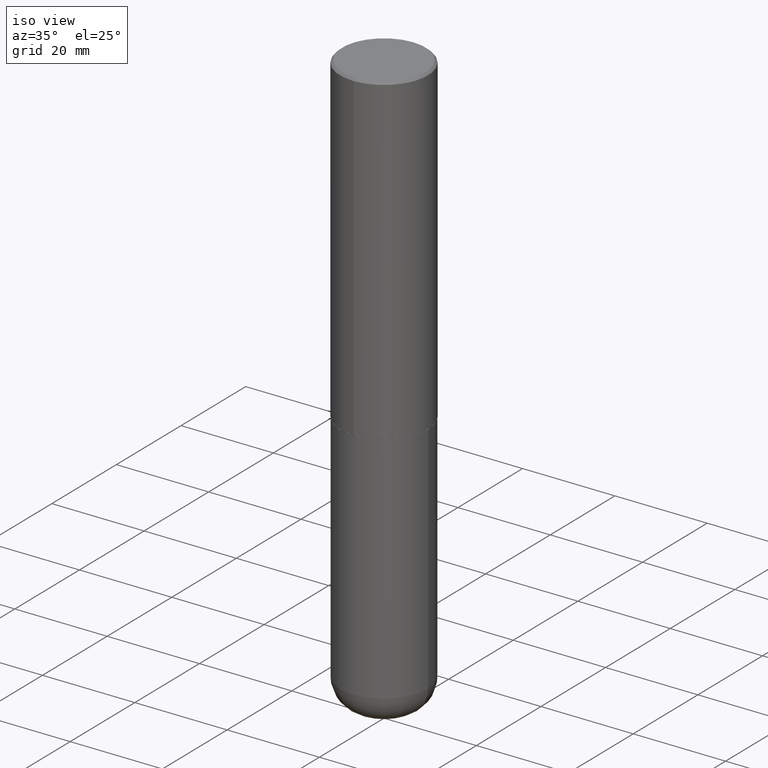
[diagram: clean part render]
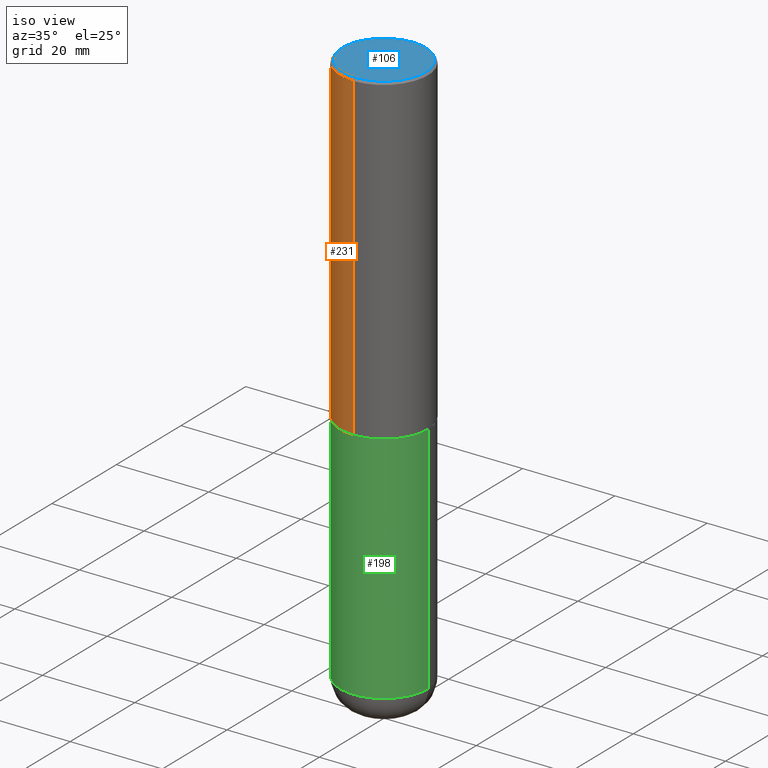
[diagram: same view with three faces highlighted in distinct colors, each labeled with its STEP entity id]
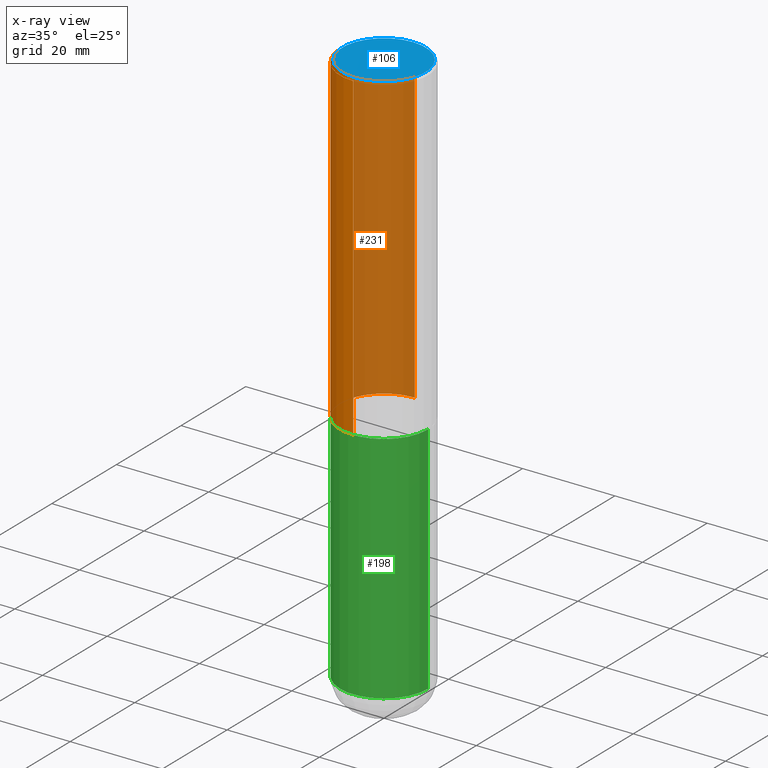
[diagram: x-ray of the same camera — body ghosted, the three highlighted faces saturated]
A machine part, iso view with three faces highlighted in distinct colors.
The next image is the same camera in x-ray (body ghosted, the three faces saturated) — at least one of them is partly hidden behind the body in this view.
Their STEP definitions:

[orange] entity #231 — the highlighted cylindrical surface (partial cylindrical patch) has radius 9.525 mm, axis along (-0, 0, 1).
#5 = VERTEX_POINT ( 'NONE', #168 ) ;
#13 = ORIENTED_EDGE ( 'NONE', *, *, #176, .T. ) ;
#19 = EDGE_CURVE ( 'NONE', #5, #32, #126, .T. ) ;
#25 = CARTESIAN_POINT ( 'NONE',  ( 4.892080783483214581E-31, -6.981325591587361238E-17, -0.02000000000000008715 ) ) ;
#32 = VERTEX_POINT ( 'NONE', #273 ) ;
#33 = VECTOR ( 'NONE', #261, 39.37007874015748143 ) ;
#66 = DIRECTION ( 'NONE',  ( -6.982962677686265922E-15, -1.000000000000000000, 2.913971193241877611E-15 ) ) ;
#77 = DIRECTION ( 'NONE',  ( -2.446040391741596606E-29, 3.490662795793665557E-15, 1.000000000000000000 ) ) ;
#88 = EDGE_CURVE ( 'NONE', #402, #341, #171, .T. ) ;
#99 = LINE ( 'NONE', #134, #138 ) ;
#104 = CARTESIAN_POINT ( 'NONE',  ( -2.572686749164323547E-15, -0.3750000000000001110, -0.01999999999999877570 ) ) ;
#107 = CARTESIAN_POINT ( 'NONE',  ( 0.000000000000000000, 0.000000000000000000, 0.000000000000000000 ) ) ;
#114 = AXIS2_PLACEMENT_3D ( 'NONE', #236, #362, #66 ) ;
#120 = LINE ( 'NONE', #123, #33 ) ;
#123 = CARTESIAN_POINT ( 'NONE',  ( -2.618611004132351594E-15, -0.3750000000000002220, 1.308998548422625521E-15 ) ) ;
#126 = CIRCLE ( 'NONE', #114, 0.3750000000000003886 ) ;
#134 = CARTESIAN_POINT ( 'NONE',  ( 2.664535259100376880E-15, 0.3750000000000002220, -1.308998548422625521E-15 ) ) ;
#138 = VECTOR ( 'NONE', #239, 39.37007874015748143 ) ;
#168 = CARTESIAN_POINT ( 'NONE',  ( 2.664535259100411196E-15, 0.3749999999999907296, -2.749000000000000998 ) ) ;
#169 = CYLINDRICAL_SURFACE ( 'NONE', #391, 0.3750000000000002220 ) ;
#171 = CIRCLE ( 'NONE', #189, 0.3750000000000000555 ) ;
#176 = EDGE_CURVE ( 'NONE', #32, #341, #120, .T. ) ;
#186 = ORIENTED_EDGE ( 'NONE', *, *, #19, .T. ) ;
#189 = AXIS2_PLACEMENT_3D ( 'NONE', #25, #326, #353 ) ;
#231 = ADVANCED_FACE ( 'NONE', ( #364 ), #169, .T. ) ;
#236 = CARTESIAN_POINT ( 'NONE',  ( 6.724165036897648492E-29, -9.595832025636787455E-15, -2.749000000000000110 ) ) ;
#239 = DIRECTION ( 'NONE',  ( -2.446040391741596606E-29, 3.490662795793665557E-15, 1.000000000000000000 ) ) ;
#244 = DIRECTION ( 'NONE',  ( -6.982962677686266711E-15, -1.000000000000000000, 3.490662795793665951E-15 ) ) ;
#255 = EDGE_CURVE ( 'NONE', #5, #402, #99, .T. ) ;
#261 = DIRECTION ( 'NONE',  ( -2.446040391741596606E-29, 3.490662795793665557E-15, 1.000000000000000000 ) ) ;
#273 = CARTESIAN_POINT ( 'NONE',  ( -2.618611004132284935E-15, -0.3750000000000099920, -2.748999999999999222 ) ) ;
#285 = CARTESIAN_POINT ( 'NONE',  ( 2.618611004132350411E-15, 0.3749999999999999445, -0.02000000000000139513 ) ) ;
#290 = EDGE_LOOP ( 'NONE', ( #371, #186, #13, #385 ) ) ;
#326 = DIRECTION ( 'NONE',  ( -2.446040391741596606E-29, 3.490662795793665557E-15, 1.000000000000000000 ) ) ;
#341 = VERTEX_POINT ( 'NONE', #104 ) ;
#353 = DIRECTION ( 'NONE',  ( -6.982962677686265922E-15, -1.000000000000000000, 3.494488891895536035E-15 ) ) ;
#362 = DIRECTION ( 'NONE',  ( -2.446040391741596606E-29, 3.490662795793665557E-15, 1.000000000000000000 ) ) ;
#364 = FACE_OUTER_BOUND ( 'NONE', #290, .T. ) ;
#371 = ORIENTED_EDGE ( 'NONE', *, *, #255, .F. ) ;
#385 = ORIENTED_EDGE ( 'NONE', *, *, #88, .F. ) ;
#391 = AXIS2_PLACEMENT_3D ( 'NONE', #107, #77, #244 ) ;
#402 = VERTEX_POINT ( 'NONE', #285 ) ;

[blue] entity #106 — the highlighted planar face has unit normal (0, -0, -1).
#4 = CARTESIAN_POINT ( 'NONE',  ( 2.478951750578624209E-15, 0.3549999999999999822, -1.215853765202481601E-15 ) ) ;
#28 = CARTESIAN_POINT ( 'NONE',  ( 2.548781377355487113E-15, 0.3549999999999999822, -1.192522237898212341E-15 ) ) ;
#31 = DIRECTION ( 'NONE',  ( 6.982962677686265922E-15, 1.000000000000000000, -3.490662795793665557E-15 ) ) ;
#45 = CARTESIAN_POINT ( 'NONE',  ( -1.141397163745304909E-45, 1.628849886601155835E-31, 4.666305460853910467E-17 ) ) ;
#52 = DIRECTION ( 'NONE',  ( -2.446040391741596606E-29, 3.490662795793665557E-15, 1.000000000000000000 ) ) ;
#55 = CARTESIAN_POINT ( 'NONE',  ( -1.141397163745304909E-45, 1.628849886601155835E-31, 4.666305460853910467E-17 ) ) ;
#67 = DIRECTION ( 'NONE',  ( -2.446040391741596606E-29, 3.490662795793665557E-15, 1.000000000000000000 ) ) ;
#90 = FACE_OUTER_BOUND ( 'NONE', #210, .T. ) ;
#106 = ADVANCED_FACE ( 'NONE', ( #90 ), #161, .F. ) ;
#127 = CIRCLE ( 'NONE', #363, 0.3549999999999999822 ) ;
#156 = VERTEX_POINT ( 'NONE', #28 ) ;
#161 = PLANE ( 'NONE',  #196 ) ;
#175 = DIRECTION ( 'NONE',  ( -6.982962677686265922E-15, -1.000000000000000000, 3.490662795793665557E-15 ) ) ;
#185 = CARTESIAN_POINT ( 'NONE',  ( -2.504081769186608216E-15, -0.3549999999999999822, 1.285848347115290366E-15 ) ) ;
#196 = AXIS2_PLACEMENT_3D ( 'NONE', #4, #330, #31 ) ;
#210 = EDGE_LOOP ( 'NONE', ( #333, #288 ) ) ;
#222 = CIRCLE ( 'NONE', #339, 0.3549999999999999822 ) ;
#284 = EDGE_CURVE ( 'NONE', #387, #156, #222, .T. ) ;
#288 = ORIENTED_EDGE ( 'NONE', *, *, #284, .T. ) ;
#330 = DIRECTION ( 'NONE',  ( 2.446040391741596045E-29, -3.490662795793665557E-15, -1.000000000000000000 ) ) ;
#333 = ORIENTED_EDGE ( 'NONE', *, *, #381, .T. ) ;
#339 = AXIS2_PLACEMENT_3D ( 'NONE', #45, #67, #175 ) ;
#363 = AXIS2_PLACEMENT_3D ( 'NONE', #55, #52, #383 ) ;
#381 = EDGE_CURVE ( 'NONE', #156, #387, #127, .T. ) ;
#383 = DIRECTION ( 'NONE',  ( -6.982962677686265922E-15, -1.000000000000000000, 3.490662795793665557E-15 ) ) ;
#387 = VERTEX_POINT ( 'NONE', #185 ) ;

[green] entity #198 — the highlighted cylindrical surface (partial cylindrical patch) has radius 9.525 mm, axis along (-0, 0, 1).
#27 = VERTEX_POINT ( 'NONE', #135 ) ;
#37 = CARTESIAN_POINT ( 'NONE',  ( -0.3750000000000000555, -1.042851976156142014E-14, -2.750000000000000000 ) ) ;
#59 = CARTESIAN_POINT ( 'NONE',  ( 0.3749999999999999445, -2.618611004132349622E-15, 1.828566290923475642E-29 ) ) ;
#65 = CARTESIAN_POINT ( 'NONE',  ( 0.3750000000000000555, -1.222018468595100145E-14, -2.750000000000000000 ) ) ;
#75 = EDGE_LOOP ( 'NONE', ( #306, #130, #224, #262 ) ) ;
#78 = DIRECTION ( 'NONE',  ( -2.445468806185136877E-29, 3.491481338843145188E-15, 1.000000000000000000 ) ) ;
#84 = VECTOR ( 'NONE', #78, 39.37007874015748143 ) ;
#103 = EDGE_CURVE ( 'NONE', #245, #170, #382, .T. ) ;
#109 = DIRECTION ( 'NONE',  ( 1.000000000000000000, -6.982962677686269077E-15, 0.000000000000000000 ) ) ;
#130 = ORIENTED_EDGE ( 'NONE', *, *, #350, .T. ) ;
#135 = CARTESIAN_POINT ( 'NONE',  ( 0.3750000000000002220, -1.920314736363729341E-14, -4.750000000000000000 ) ) ;
#136 = EDGE_CURVE ( 'NONE', #27, #170, #355, .T. ) ;
#137 = CYLINDRICAL_SURFACE ( 'NONE', #346, 0.3749999999999999445 ) ;
#141 = CARTESIAN_POINT ( 'NONE',  ( -0.3749999999999999445, 2.664535259100375303E-15, -1.844600658845589318E-29 ) ) ;
#170 = VERTEX_POINT ( 'NONE', #65 ) ;
#177 = LINE ( 'NONE', #141, #84 ) ;
#179 = VECTOR ( 'NONE', #190, 39.37007874015748143 ) ;
#190 = DIRECTION ( 'NONE',  ( -2.445468806185136877E-29, 3.491481338843145188E-15, 1.000000000000000000 ) ) ;
#192 = CARTESIAN_POINT ( 'NONE',  ( 6.725039217009124520E-29, -9.601573681818649859E-15, -2.750000000000000000 ) ) ;
#198 = ADVANCED_FACE ( 'NONE', ( #332 ), #137, .T. ) ;
#219 = EDGE_CURVE ( 'NONE', #418, #245, #177, .T. ) ;
#224 = ORIENTED_EDGE ( 'NONE', *, *, #136, .T. ) ;
#238 = AXIS2_PLACEMENT_3D ( 'NONE', #275, #368, #109 ) ;
#242 = DIRECTION ( 'NONE',  ( 1.000000000000000000, -6.982962677686266711E-15, 4.876176775795935793E-29 ) ) ;
#245 = VERTEX_POINT ( 'NONE', #37 ) ;
#254 = CARTESIAN_POINT ( 'NONE',  ( -0.3750000000000002220, -1.392000110040456296E-14, -4.750000000000000000 ) ) ;
#262 = ORIENTED_EDGE ( 'NONE', *, *, #103, .F. ) ;
#275 = CARTESIAN_POINT ( 'NONE',  ( 1.161597682937940108E-28, -1.658453635950494339E-14, -4.750000000000000000 ) ) ;
#280 = AXIS2_PLACEMENT_3D ( 'NONE', #192, #292, #324 ) ;
#292 = DIRECTION ( 'NONE',  ( -2.445468806185136597E-29, 3.491481338843145583E-15, 1.000000000000000000 ) ) ;
#305 = CARTESIAN_POINT ( 'NONE',  ( 0.000000000000000000, 0.000000000000000000, 0.000000000000000000 ) ) ;
#306 = ORIENTED_EDGE ( 'NONE', *, *, #219, .F. ) ;
#324 = DIRECTION ( 'NONE',  ( 1.000000000000000000, -6.982962677686266711E-15, 0.000000000000000000 ) ) ;
#332 = FACE_OUTER_BOUND ( 'NONE', #75, .T. ) ;
#346 = AXIS2_PLACEMENT_3D ( 'NONE', #305, #396, #242 ) ;
#350 = EDGE_CURVE ( 'NONE', #418, #27, #407, .T. ) ;
#355 = LINE ( 'NONE', #59, #179 ) ;
#368 = DIRECTION ( 'NONE',  ( -2.445468806185136597E-29, 3.491481338843145583E-15, 1.000000000000000000 ) ) ;
#382 = CIRCLE ( 'NONE', #280, 0.3750000000000000555 ) ;
#396 = DIRECTION ( 'NONE',  ( -2.445468806185136597E-29, 3.491481338843145583E-15, 1.000000000000000000 ) ) ;
#407 = CIRCLE ( 'NONE', #238, 0.3749999999999999445 ) ;
#418 = VERTEX_POINT ( 'NONE', #254 ) ;